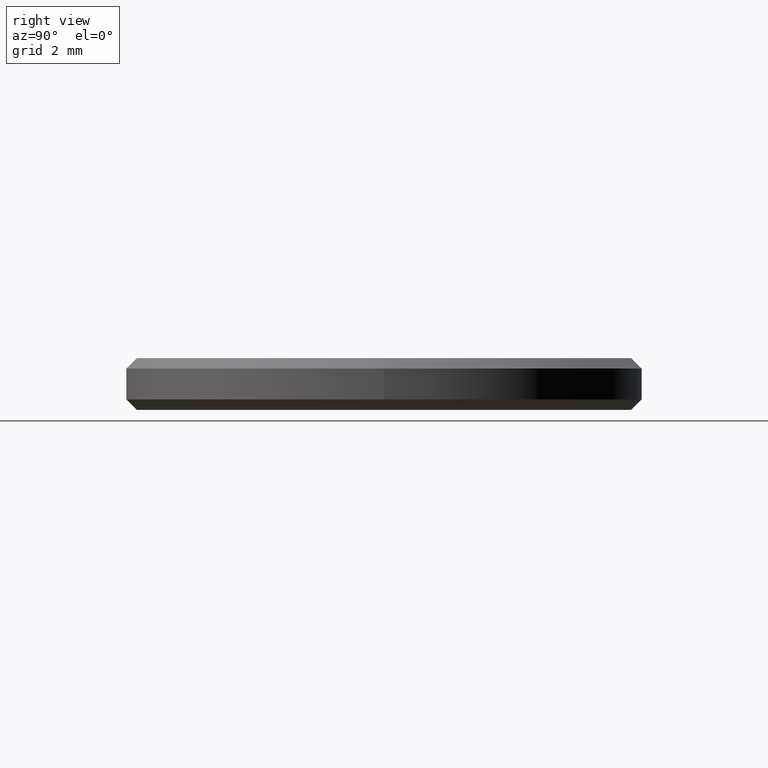
[diagram: clean part render]
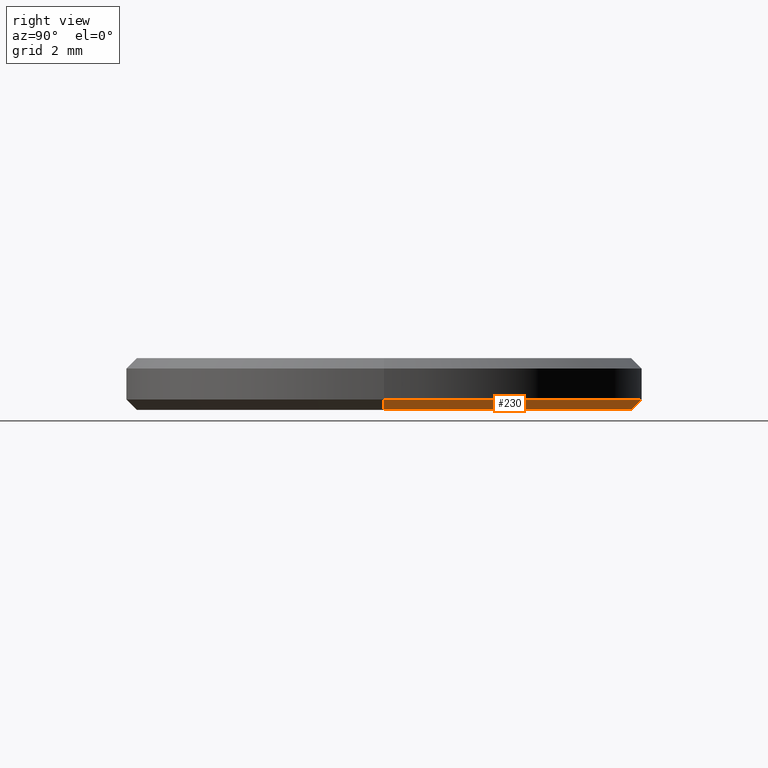
[diagram: same view with one face highlighted and labeled with its STEP entity id]
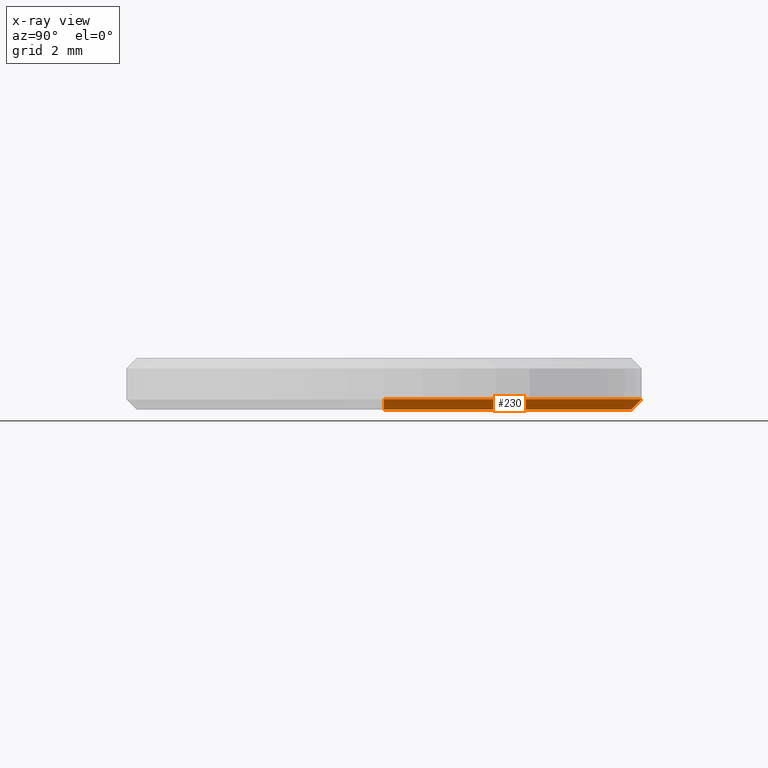
[diagram: x-ray of the same camera — body ghosted, the highlighted face saturated]
A machine part, right view. The second image highlights one B-rep face of the part: STEP entity #230.
The next image is the same camera in x-ray: the body ghosted, the highlighted face saturated — about 0% of this face is hidden behind the body in this view.
In plain terms, the highlighted conical surface has half-angle 45 deg.
Its self-contained STEP definition (entity closure, byte-faithful):
#16 = CARTESIAN_POINT ( 'NONE',  ( 0.000000000000000000, 0.000000000000000000, 0.000000000000000000 ) ) ;
#17 = CARTESIAN_POINT ( 'NONE',  ( -4.799999999999999822, 6.000769315822029754E-16, 0.000000000000000000 ) ) ;
#22 = EDGE_CURVE ( 'NONE', #174, #156, #23, .T. ) ;
#23 = LINE ( 'NONE', #232, #231 ) ;
#33 = DIRECTION ( 'NONE',  ( -0.000000000000000000, -0.000000000000000000, 1.000000000000000000 ) ) ;
#36 = FACE_OUTER_BOUND ( 'NONE', #207, .T. ) ;
#38 = DIRECTION ( 'NONE',  ( -0.000000000000000000, -0.000000000000000000, 1.000000000000000000 ) ) ;
#42 = CONICAL_SURFACE ( 'NONE', #72, 5.000000000000000000, 0.7853981633974503884 ) ;
#48 = VERTEX_POINT ( 'NONE', #198 ) ;
#53 = DIRECTION ( 'NONE',  ( 1.000000000000000000, 0.000000000000000000, 0.000000000000000000 ) ) ;
#58 = CIRCLE ( 'NONE', #159, 4.799999999999999822 ) ;
#64 = CIRCLE ( 'NONE', #194, 5.000000000000000000 ) ;
#67 = ORIENTED_EDGE ( 'NONE', *, *, #141, .F. ) ;
#72 = AXIS2_PLACEMENT_3D ( 'NONE', #221, #33, #85 ) ;
#77 = CARTESIAN_POINT ( 'NONE',  ( 0.000000000000000000, 0.000000000000000000, 0.1999999999999996503 ) ) ;
#80 = ORIENTED_EDGE ( 'NONE', *, *, #101, .F. ) ;
#85 = DIRECTION ( 'NONE',  ( 1.000000000000000000, 0.000000000000000000, 0.000000000000000000 ) ) ;
#96 = DIRECTION ( 'NONE',  ( 0.7071067811865490160, 0.000000000000000000, 0.7071067811865459074 ) ) ;
#101 = EDGE_CURVE ( 'NONE', #208, #174, #58, .T. ) ;
#108 = CARTESIAN_POINT ( 'NONE',  ( -5.000000000000000000, 6.123233995736765296E-16, 0.1999999999999996503 ) ) ;
#114 = VECTOR ( 'NONE', #180, 1000.000000000000000 ) ;
#115 = LINE ( 'NONE', #108, #114 ) ;
#121 = ORIENTED_EDGE ( 'NONE', *, *, #22, .F. ) ;
#132 = CARTESIAN_POINT ( 'NONE',  ( 4.799999999999999822, 0.000000000000000000, 0.000000000000000000 ) ) ;
#141 = EDGE_CURVE ( 'NONE', #156, #48, #64, .T. ) ;
#156 = VERTEX_POINT ( 'NONE', #165 ) ;
#159 = AXIS2_PLACEMENT_3D ( 'NONE', #16, #183, #178 ) ;
#165 = CARTESIAN_POINT ( 'NONE',  ( 5.000000000000000000, 6.123233995736766282E-16, 0.1999999999999996503 ) ) ;
#174 = VERTEX_POINT ( 'NONE', #132 ) ;
#178 = DIRECTION ( 'NONE',  ( 1.000000000000000000, 0.000000000000000000, 0.000000000000000000 ) ) ;
#180 = DIRECTION ( 'NONE',  ( -0.7071067811865490160, 8.659560562354950115E-17, 0.7071067811865459074 ) ) ;
#183 = DIRECTION ( 'NONE',  ( -0.000000000000000000, -0.000000000000000000, -1.000000000000000000 ) ) ;
#186 = EDGE_CURVE ( 'NONE', #208, #48, #115, .T. ) ;
#190 = ORIENTED_EDGE ( 'NONE', *, *, #186, .T. ) ;
#194 = AXIS2_PLACEMENT_3D ( 'NONE', #77, #38, #53 ) ;
#198 = CARTESIAN_POINT ( 'NONE',  ( -5.000000000000000000, 0.000000000000000000, 0.1999999999999996503 ) ) ;
#207 = EDGE_LOOP ( 'NONE', ( #80, #190, #67, #121 ) ) ;
#208 = VERTEX_POINT ( 'NONE', #17 ) ;
#221 = CARTESIAN_POINT ( 'NONE',  ( 0.000000000000000000, 0.000000000000000000, 0.1999999999999996503 ) ) ;
#230 = ADVANCED_FACE ( 'NONE', ( #36 ), #42, .T. ) ;
#231 = VECTOR ( 'NONE', #96, 1000.000000000000000 ) ;
#232 = CARTESIAN_POINT ( 'NONE',  ( 5.000000000000000000, 0.000000000000000000, 0.1999999999999996503 ) ) ;